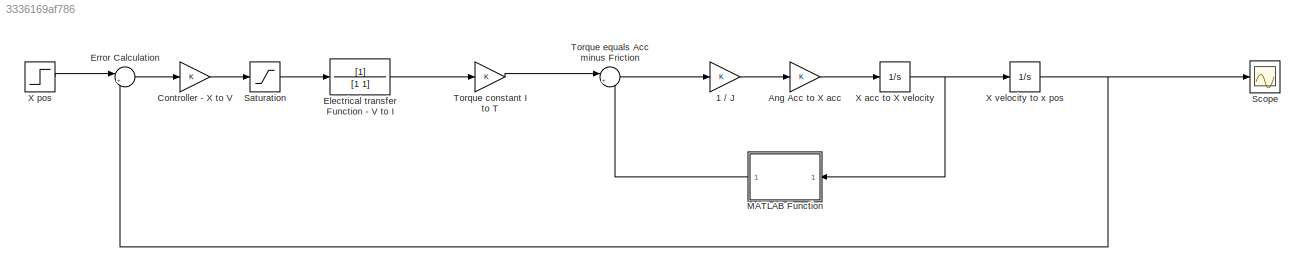
MODEL slx_3336169af786
KIND model
CONFIG AbsTol = auto
CONFIG EnableMultiTasking = off
CONFIG FixedStep = auto
CONFIG MaxStep = auto
CONFIG MinStep = auto
CONFIG RelTol = 1e-3
CONFIG SampleTimeConstraint = Unconstrained
CONFIG SolverName = VariableStepAuto
CONFIG StartTime = 0.0
CONFIG StopTime = 10.0
BLOCK [Gain] 1 // J
BLOCK [Gain] Ang Acc to X acc
BLOCK [Gain] Controller - X to V
BLOCK [TransferFcn] Electrical transfer Function  - V to I
  Denominator = [1 1]
BLOCK [Sum] Error Calculation
  Inputs = |+-
  Ports = [2, 1]
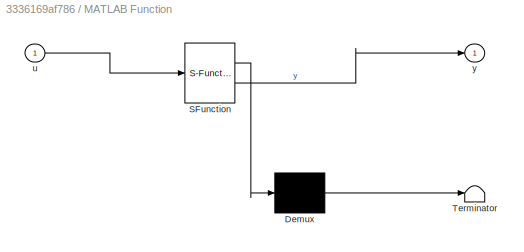
BLOCK [SubSystem] MATLAB Function
  ErrorFcn = Stateflow.Translate.translate
  NameLocation = top
  PermitHierarchicalResolution = ExplicitOnly
  Ports = [1, 1]
  RequestExecContextInheritance = off
  SFBlockType = MATLAB Function
  TreatAsAtomicUnit = on
BLOCK [Demux] MATLAB Function/ Demux 
  Outputs = 1
  Ports = [1, 1]
BLOCK [S-Function] MATLAB Function/ SFunction 
  EnableBusSupport = on
  FunctionName = sf_sfun
  PortCounts = [1 2]
  Ports = [1, 2]
  SFcnIsStateOwnerBlock = off
  SFunctionDeploymentMode = off
  Tag = Stateflow S-Function 2
BLOCK [Terminator] MATLAB Function/ Terminator 
BLOCK [Inport] MATLAB Function/u
BLOCK [Outport] MATLAB Function/y
BLOCK [Saturate] Saturation
BLOCK [Scope] Scope
  Floating = off
  NumInputPorts = 1
  Ports = [1]
  ScopeSpecificationString = Simulink.scopes.TimeScopeBlockCfg('CurrentConfiguration', extmgr.ConfigurationSet(extmgr.Configuration('Core','General UI',true),extmgr.Configuration('Core','Source UI',true),extmgr.Configuration('Sources','WiredSimulink',true),extmgr.Configuration('Visuals','Time Domain',true),extmgr.Configuration('Tools','Plot Navigation',true),extmgr.Configuration('Tools','Measurements',true,'Version','2020b'))...<+19ch>
BLOCK [Gain] Torque constant I to T 
BLOCK [Sum] Torque equals Acc minus Friction
  Inputs = |++
  Ports = [2, 1]
BLOCK [Integrator] X acc to X velocity
  Ports = [1, 1]
BLOCK [Step] X pos
  SampleTime = 0
BLOCK [Integrator] X velocity to x pos
  Ports = [1, 1]
LINE 1 // J:1 -> Ang Acc to X acc:1
LINE Ang Acc to X acc:1 -> X acc to X velocity:1
LINE Controller - X to V:1 -> Saturation:1
LINE Electrical transfer Function  - V to I:1 -> Torque constant I to T :1
LINE Error Calculation:1 -> Controller - X to V:1
LINE MATLAB Function:1 -> Torque equals Acc minus Friction:2
LINE Saturation:1 -> Electrical transfer Function  - V to I:1
LINE Torque constant I to T :1 -> Torque equals Acc minus Friction:1
LINE Torque equals Acc minus Friction:1 -> 1 // J:1
NET X acc to X velocity:1 -> MATLAB Function:1, X velocity to x pos:1
LINE X pos:1 -> Error Calculation:1
NET X velocity to x pos:1 -> Error Calculation:2, Scope:1
note: NET lines group one-source signal fan-out (src -> all destinations, sorted); 1:1 wires keep LINE
CHART MATLAB Function states=1 transitions=1
  STATE_LABEL 'eML_blk_kernel()'
  STATE_LABEL 'SCRIPT:\nfunction y = fcn(u)\n\n% For this function, y is friction and u is trasnlational velocity\n%The following constants are dependent on the parameters of the system\n%They are take from Design of Control Systems Dec 20, 2016\ngamma = 749;%  [-]\nF_s = 17.5; % [N]\nF_v = 13.0; %[N * s * m^-1]\ndelta = 0.652; % [-]\n\ny = tanh(u * gamma) * F_s + F_v * (abs(u) ^delta);\n'
CHART  states=0 transitions=0
